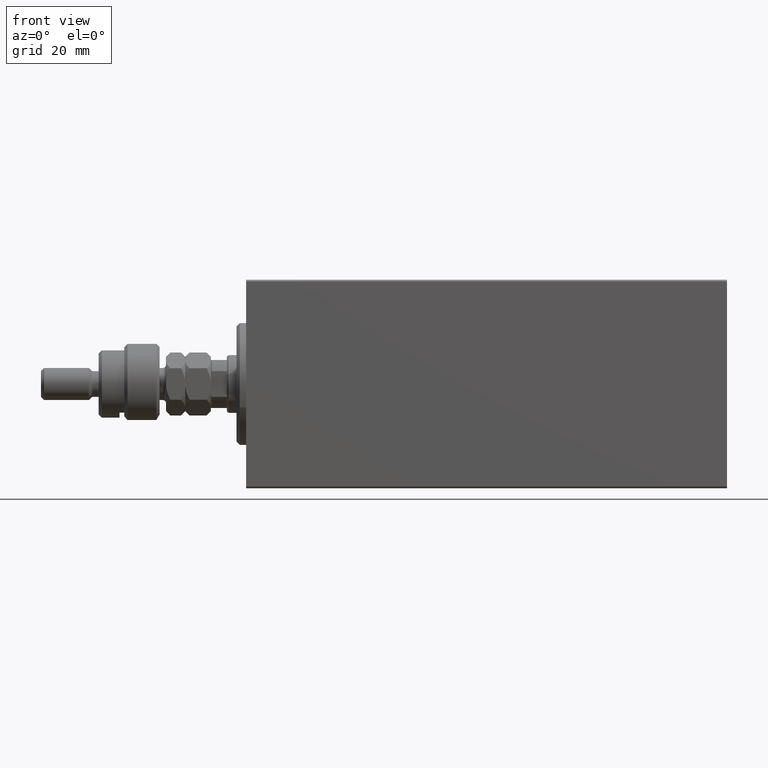
[diagram: clean part render]
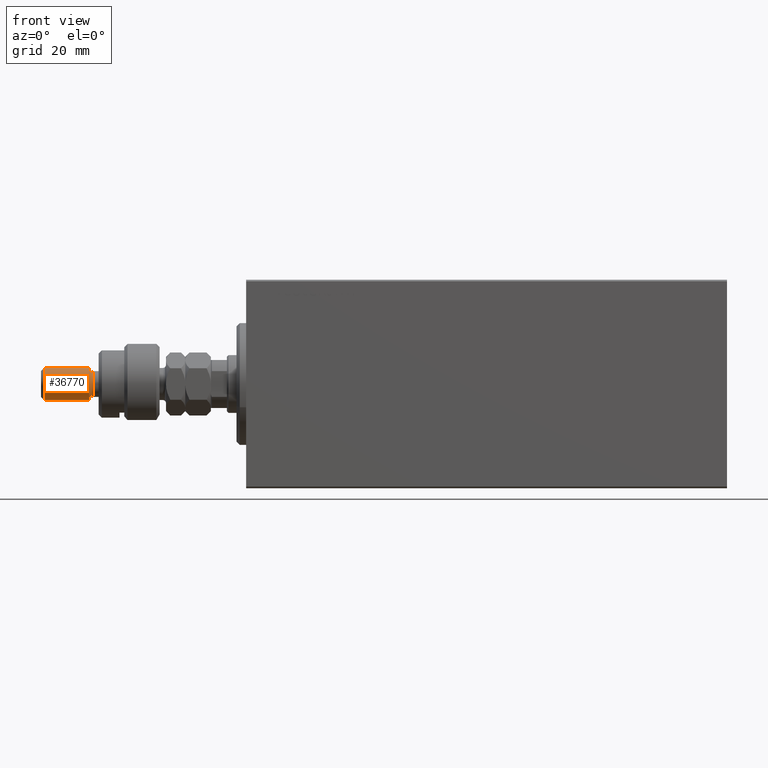
[diagram: same view with one face highlighted and labeled with its STEP entity id]
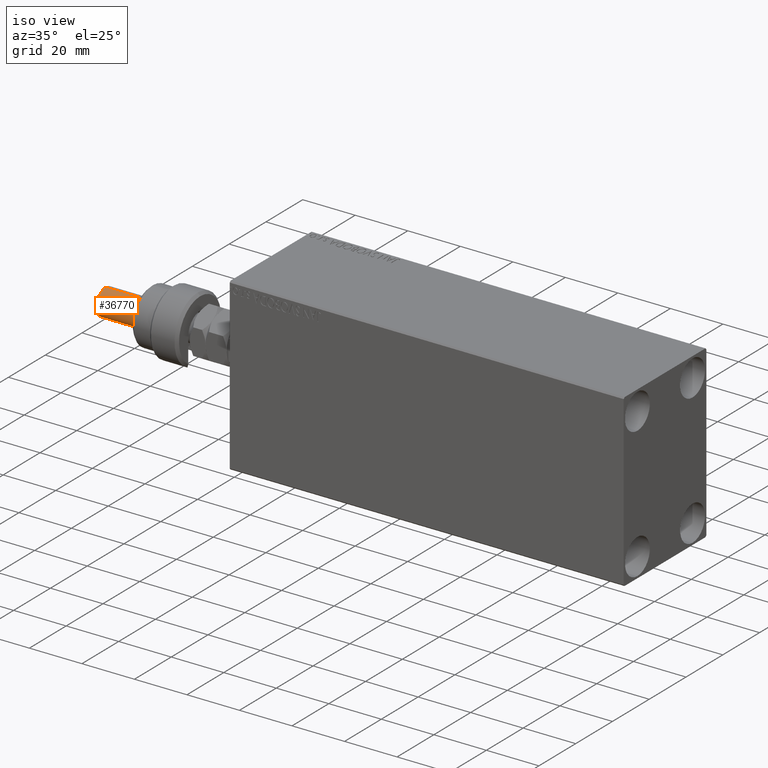
[diagram: same view with one face highlighted and labeled with its STEP entity id]
A machine part, front view. The second image highlights one B-rep face of the part: STEP entity #36770.
A second angle (iso view) of the same face is appended — the face is thin or edge-on in the first view.
In plain terms, the highlighted cylindrical surface (edge-blend (fillet) strip) has radius 5 mm, axis along (1, -0, -0).
Its self-contained STEP definition (entity closure, byte-faithful):
#3221 = LINE ( 'NONE', #17421, #34822 ) ;
#4599 = DIRECTION ( 'NONE',  ( -0.000000000000000000, -0.000000000000000000, -1.000000000000000000 ) ) ;
#5097 = DIRECTION ( 'NONE',  ( -1.000000000000000000, 0.000000000000000000, 0.000000000000000000 ) ) ;
#5247 = ORIENTED_EDGE ( 'NONE', *, *, #41534, .F. ) ;
#5345 = EDGE_CURVE ( 'NONE', #30279, #39430, #30157, .T. ) ;
#5470 = VERTEX_POINT ( 'NONE', #27744 ) ;
#6305 = EDGE_CURVE ( 'NONE', #6796, #30279, #21385, .T. ) ;
#6796 = VERTEX_POINT ( 'NONE', #46111 ) ;
#7865 = ORIENTED_EDGE ( 'NONE', *, *, #22349, .T. ) ;
#12432 = DIRECTION ( 'NONE',  ( -0.000000000000000000, -0.000000000000000000, -1.000000000000000000 ) ) ;
#13968 = CYLINDRICAL_SURFACE ( 'NONE', #45416, 5.000000000000000888 ) ;
#15362 = ORIENTED_EDGE ( 'NONE', *, *, #6305, .T. ) ;
#16210 = FACE_OUTER_BOUND ( 'NONE', #24185, .T. ) ;
#17421 = CARTESIAN_POINT ( 'NONE',  ( 5.000000000000000888, 6.123233995736767268E-16, 37.00000000000000000 ) ) ;
#21112 = CARTESIAN_POINT ( 'NONE',  ( 0.000000000000000000, 0.000000000000000000, 36.00000000000000711 ) ) ;
#21385 = CIRCLE ( 'NONE', #23701, 5.000000000000000888 ) ;
#22349 = EDGE_CURVE ( 'NONE', #39430, #5470, #41423, .T. ) ;
#23701 = AXIS2_PLACEMENT_3D ( 'NONE', #21112, #38188, #31767 ) ;
#24185 = EDGE_LOOP ( 'NONE', ( #5247, #15362, #33104, #7865 ) ) ;
#25254 = DIRECTION ( 'NONE',  ( -0.000000000000000000, -0.000000000000000000, 1.000000000000000000 ) ) ;
#27744 = CARTESIAN_POINT ( 'NONE',  ( 5.000000000000000888, 6.123233995736767268E-16, 21.99999999999999289 ) ) ;
#28169 = CARTESIAN_POINT ( 'NONE',  ( 0.000000000000000000, 0.000000000000000000, 37.00000000000000000 ) ) ;
#30157 = LINE ( 'NONE', #33940, #34264 ) ;
#30279 = VERTEX_POINT ( 'NONE', #34732 ) ;
#31767 = DIRECTION ( 'NONE',  ( 1.000000000000000000, 0.000000000000000000, 0.000000000000000000 ) ) ;
#31863 = DIRECTION ( 'NONE',  ( -0.000000000000000000, -0.000000000000000000, -1.000000000000000000 ) ) ;
#32829 = CARTESIAN_POINT ( 'NONE',  ( -5.000000000000000888, 0.000000000000000000, 21.99999999999999289 ) ) ;
#33104 = ORIENTED_EDGE ( 'NONE', *, *, #5345, .T. ) ;
#33940 = CARTESIAN_POINT ( 'NONE',  ( -5.000000000000000888, 0.000000000000000000, 37.00000000000000000 ) ) ;
#34264 = VECTOR ( 'NONE', #4599, 1000.000000000000000 ) ;
#34732 = CARTESIAN_POINT ( 'NONE',  ( -5.000000000000000888, 0.000000000000000000, 36.00000000000000711 ) ) ;
#34822 = VECTOR ( 'NONE', #31863, 1000.000000000000000 ) ;
#36770 = ADVANCED_FACE ( 'NONE', ( #16210 ), #13968, .T. ) ;
#38188 = DIRECTION ( 'NONE',  ( 0.000000000000000000, 0.000000000000000000, -1.000000000000000000 ) ) ;
#39119 = AXIS2_PLACEMENT_3D ( 'NONE', #42786, #25254, #43018 ) ;
#39430 = VERTEX_POINT ( 'NONE', #32829 ) ;
#41423 = CIRCLE ( 'NONE', #39119, 5.000000000000000888 ) ;
#41534 = EDGE_CURVE ( 'NONE', #6796, #5470, #3221, .T. ) ;
#42786 = CARTESIAN_POINT ( 'NONE',  ( 0.000000000000000000, 0.000000000000000000, 21.99999999999999289 ) ) ;
#43018 = DIRECTION ( 'NONE',  ( 1.000000000000000000, 0.000000000000000000, 0.000000000000000000 ) ) ;
#45416 = AXIS2_PLACEMENT_3D ( 'NONE', #28169, #12432, #5097 ) ;
#46111 = CARTESIAN_POINT ( 'NONE',  ( 5.000000000000000888, 6.123233995736767268E-16, 36.00000000000000711 ) ) ;